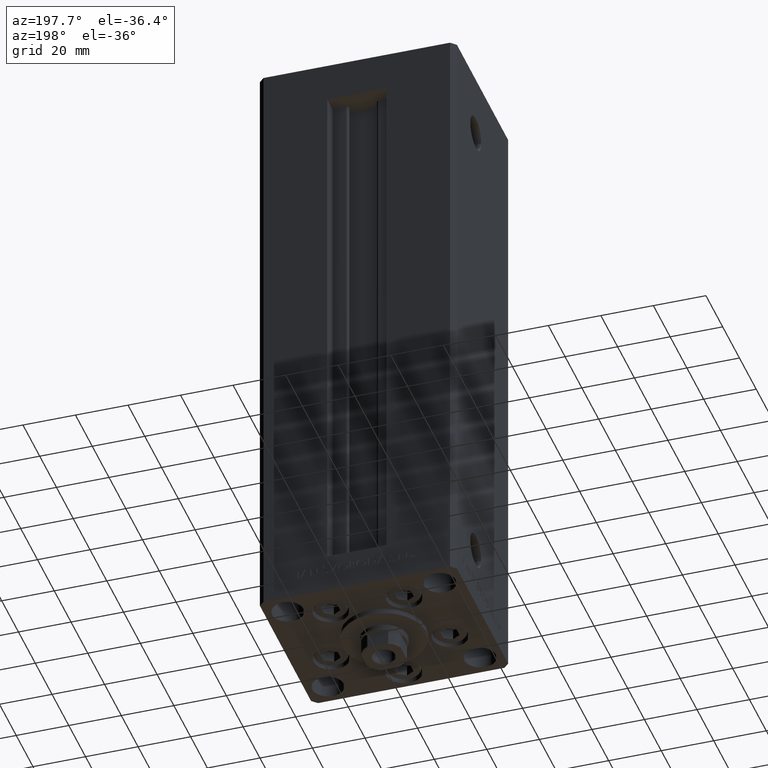
[diagram: clean part render]
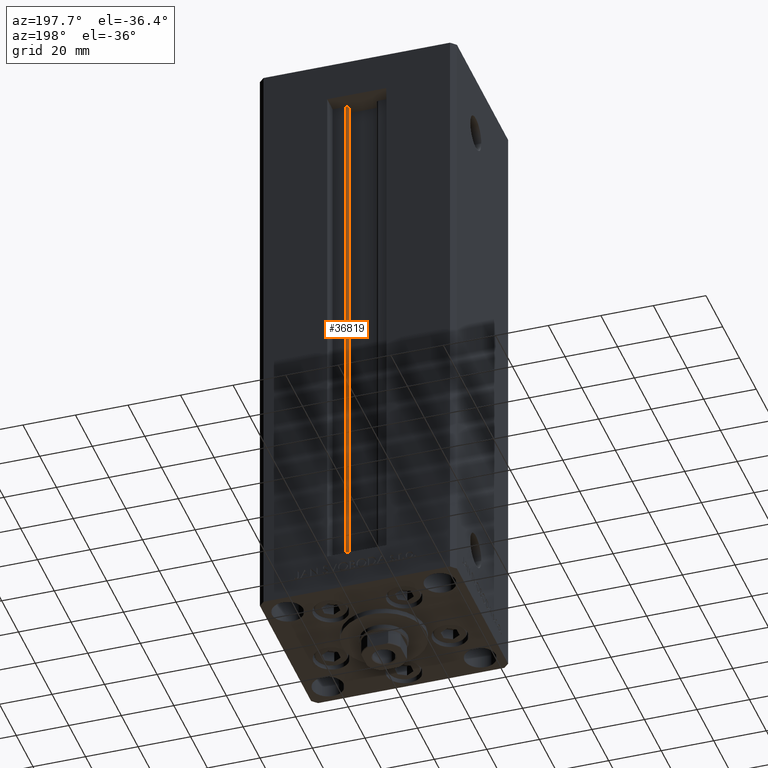
[diagram: same view with one face highlighted and labeled with its STEP entity id]
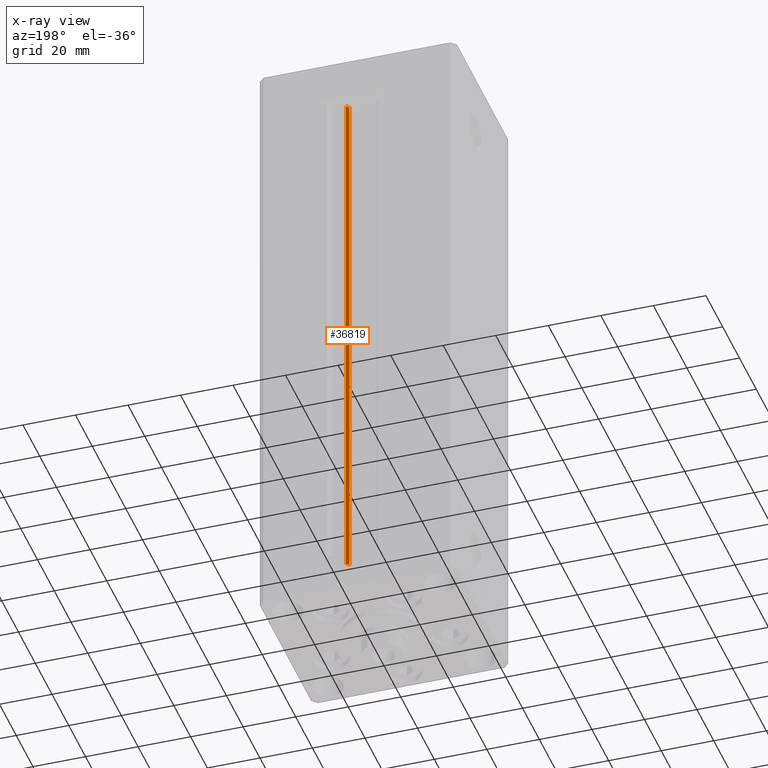
[diagram: x-ray of the same camera — body ghosted, the highlighted face saturated]
A machine part, auxiliary view. The second image highlights one B-rep face of the part: STEP entity #36819.
The next image is the same camera in x-ray: the body ghosted, the highlighted face saturated — about 0% of this face is hidden behind the body in this view.
In plain terms, the highlighted cylindrical surface (edge-blend (fillet) strip) has radius 0.9333 mm, axis along (0, 0, 1).
Its self-contained STEP definition (entity closure, byte-faithful):
#371 = VECTOR ( 'NONE', #28864, 1000.000000000000000 ) ;
#629 = EDGE_CURVE ( 'NONE', #8170, #47076, #5027, .T. ) ;
#3340 = DIRECTION ( 'NONE',  ( 1.000000000000000000, 0.000000000000000000, 0.000000000000000000 ) ) ;
#5027 = CIRCLE ( 'NONE', #7476, 0.9333333333340008142 ) ;
#5140 = EDGE_CURVE ( 'NONE', #17551, #8170, #47725, .T. ) ;
#5379 = CYLINDRICAL_SURFACE ( 'NONE', #44255, 0.9333333333340008142 ) ;
#6766 = ORIENTED_EDGE ( 'NONE', *, *, #629, .T. ) ;
#7476 = AXIS2_PLACEMENT_3D ( 'NONE', #37745, #27175, #14875 ) ;
#8170 = VERTEX_POINT ( 'NONE', #43298 ) ;
#8729 = ORIENTED_EDGE ( 'NONE', *, *, #35253, .F. ) ;
#9345 = EDGE_LOOP ( 'NONE', ( #47819, #8729, #48417, #6766 ) ) ;
#10818 = CARTESIAN_POINT ( 'NONE',  ( 6.183333333334001480, 25.99999999999999289, 0.000000000000000000 ) ) ;
#14226 = DIRECTION ( 'NONE',  ( -0.000000000000000000, -0.000000000000000000, 1.000000000000000000 ) ) ;
#14774 = CARTESIAN_POINT ( 'NONE',  ( 5.375042956467947164, 24.59999999999899245, 0.000000000000000000 ) ) ;
#14875 = DIRECTION ( 'NONE',  ( 1.000000000000000000, 0.000000000000000000, 0.000000000000000000 ) ) ;
#15062 = CIRCLE ( 'NONE', #27904, 0.9333333333340008142 ) ;
#17076 = CARTESIAN_POINT ( 'NONE',  ( 5.375042956467947164, 24.59999999999899245, 0.000000000000000000 ) ) ;
#17551 = VERTEX_POINT ( 'NONE', #14774 ) ;
#17682 = DIRECTION ( 'NONE',  ( 1.000000000000000000, 0.000000000000000000, 0.000000000000000000 ) ) ;
#21191 = FACE_OUTER_BOUND ( 'NONE', #9345, .T. ) ;
#24384 = CARTESIAN_POINT ( 'NONE',  ( 6.183333333334001480, 25.99999999999999289, 206.0000000000000000 ) ) ;
#24911 = EDGE_CURVE ( 'NONE', #38527, #47076, #33333, .T. ) ;
#25310 = VECTOR ( 'NONE', #14226, 1000.000000000000000 ) ;
#27175 = DIRECTION ( 'NONE',  ( 0.000000000000000000, 0.000000000000000000, -1.000000000000000000 ) ) ;
#27904 = AXIS2_PLACEMENT_3D ( 'NONE', #30228, #41786, #3340 ) ;
#27989 = CARTESIAN_POINT ( 'NONE',  ( 6.183333333334001480, 25.06666666666599141, 0.000000000000000000 ) ) ;
#28864 = DIRECTION ( 'NONE',  ( -0.000000000000000000, -0.000000000000000000, 1.000000000000000000 ) ) ;
#30228 = CARTESIAN_POINT ( 'NONE',  ( 6.183333333334001480, 25.06666666666599141, 0.000000000000000000 ) ) ;
#33333 = LINE ( 'NONE', #37101, #25310 ) ;
#35253 = EDGE_CURVE ( 'NONE', #17551, #38527, #15062, .T. ) ;
#36819 = ADVANCED_FACE ( 'NONE', ( #21191 ), #5379, .T. ) ;
#37101 = CARTESIAN_POINT ( 'NONE',  ( 6.183333333334001480, 25.99999999999999289, 0.000000000000000000 ) ) ;
#37745 = CARTESIAN_POINT ( 'NONE',  ( 6.183333333334001480, 25.06666666666599141, 206.0000000000000000 ) ) ;
#38527 = VERTEX_POINT ( 'NONE', #10818 ) ;
#41786 = DIRECTION ( 'NONE',  ( -0.000000000000000000, -0.000000000000000000, -1.000000000000000000 ) ) ;
#43298 = CARTESIAN_POINT ( 'NONE',  ( 5.375042956467948052, 24.59999999999899245, 206.0000000000000000 ) ) ;
#43823 = DIRECTION ( 'NONE',  ( -0.000000000000000000, -0.000000000000000000, 1.000000000000000000 ) ) ;
#44255 = AXIS2_PLACEMENT_3D ( 'NONE', #27989, #43823, #17682 ) ;
#47076 = VERTEX_POINT ( 'NONE', #24384 ) ;
#47725 = LINE ( 'NONE', #17076, #371 ) ;
#47819 = ORIENTED_EDGE ( 'NONE', *, *, #24911, .F. ) ;
#48417 = ORIENTED_EDGE ( 'NONE', *, *, #5140, .T. ) ;